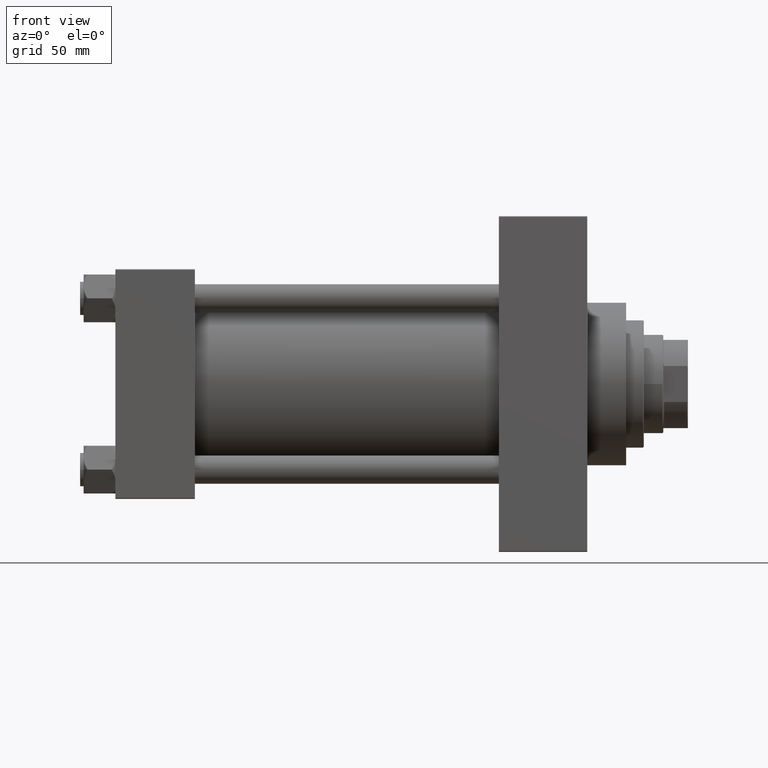
[diagram: clean part render]
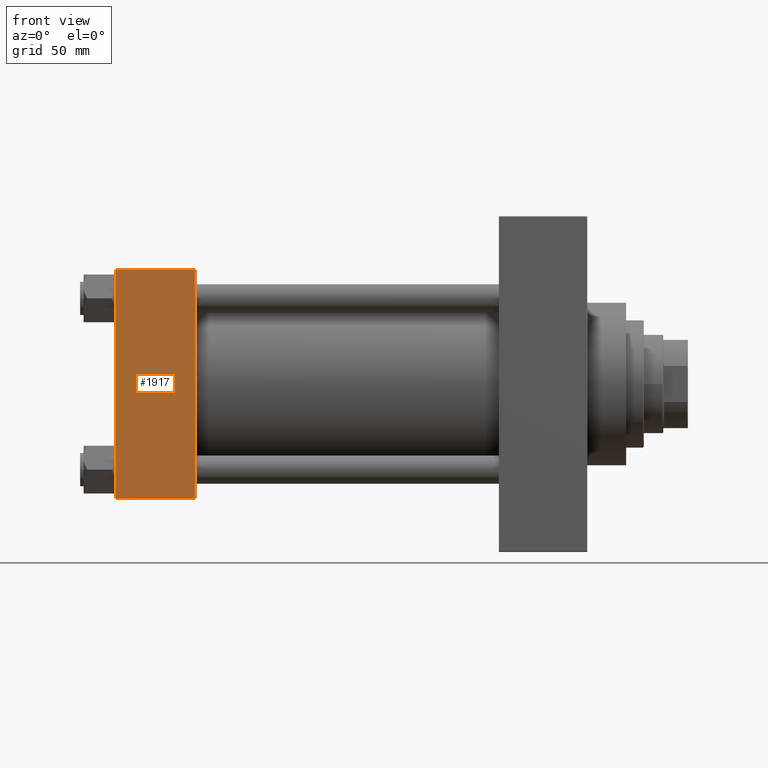
[diagram: same view with one face highlighted and labeled with its STEP entity id]
A machine part, front view. The second image highlights one B-rep face of the part: STEP entity #1917.
In plain terms, the highlighted planar face has unit normal (0, 1, 0).
Its self-contained STEP definition (entity closure, byte-faithful):
#591 = CARTESIAN_POINT ( 'NONE',  ( 0.000000000000000000, -65.00000000000000000, 64.50000000000000000 ) ) ;
#1917 = ADVANCED_FACE ( 'NONE', ( #24980 ), #39738, .F. ) ;
#5278 = DIRECTION ( 'NONE',  ( 0.000000000000000000, 0.000000000000000000, -1.000000000000000000 ) ) ;
#6895 = DIRECTION ( 'NONE',  ( 0.000000000000000000, -0.000000000000000000, 1.000000000000000000 ) ) ;
#9264 = CARTESIAN_POINT ( 'NONE',  ( 45.00000000000000000, -65.00000000000000000, 64.50000000000000000 ) ) ;
#9585 = LINE ( 'NONE', #35445, #14270 ) ;
#12142 = ORIENTED_EDGE ( 'NONE', *, *, #32603, .T. ) ;
#14270 = VECTOR ( 'NONE', #5278, 1000.000000000000000 ) ;
#16224 = DIRECTION ( 'NONE',  ( 1.000000000000000000, 0.000000000000000000, 0.000000000000000000 ) ) ;
#17740 = DIRECTION ( 'NONE',  ( -0.000000000000000000, 1.000000000000000000, 0.000000000000000000 ) ) ;
#18839 = CARTESIAN_POINT ( 'NONE',  ( 45.00000000000000000, -65.00000000000000000, 64.50000000000000000 ) ) ;
#19393 = VECTOR ( 'NONE', #21763, 1000.000000000000000 ) ;
#20867 = EDGE_CURVE ( 'NONE', #36785, #24889, #43504, .T. ) ;
#21363 = CARTESIAN_POINT ( 'NONE',  ( 45.00000000000000000, -65.00000000000000000, 65.00000000000000000 ) ) ;
#21763 = DIRECTION ( 'NONE',  ( -1.000000000000000000, 0.000000000000000000, 0.000000000000000000 ) ) ;
#22109 = LINE ( 'NONE', #25969, #44209 ) ;
#24111 = ORIENTED_EDGE ( 'NONE', *, *, #28397, .F. ) ;
#24889 = VERTEX_POINT ( 'NONE', #591 ) ;
#24980 = FACE_OUTER_BOUND ( 'NONE', #27483, .T. ) ;
#25263 = VERTEX_POINT ( 'NONE', #42515 ) ;
#25969 = CARTESIAN_POINT ( 'NONE',  ( 45.00000000000000000, -65.00000000000000000, 65.00000000000000000 ) ) ;
#26893 = ORIENTED_EDGE ( 'NONE', *, *, #20867, .T. ) ;
#27483 = EDGE_LOOP ( 'NONE', ( #12142, #40409, #24111, #26893 ) ) ;
#28134 = AXIS2_PLACEMENT_3D ( 'NONE', #21363, #17740, #6895 ) ;
#28397 = EDGE_CURVE ( 'NONE', #36785, #46552, #22109, .T. ) ;
#31789 = EDGE_CURVE ( 'NONE', #25263, #46552, #34369, .T. ) ;
#32603 = EDGE_CURVE ( 'NONE', #24889, #25263, #9585, .T. ) ;
#33559 = CARTESIAN_POINT ( 'NONE',  ( 45.00000000000000000, -65.00000000000000000, -64.49999999999991473 ) ) ;
#33906 = CARTESIAN_POINT ( 'NONE',  ( 45.00000000000000000, -65.00000000000000000, -64.49999999999991473 ) ) ;
#34369 = LINE ( 'NONE', #33906, #45086 ) ;
#35445 = CARTESIAN_POINT ( 'NONE',  ( 0.000000000000000000, -65.00000000000000000, 65.00000000000000000 ) ) ;
#36785 = VERTEX_POINT ( 'NONE', #9264 ) ;
#39738 = PLANE ( 'NONE',  #28134 ) ;
#40409 = ORIENTED_EDGE ( 'NONE', *, *, #31789, .T. ) ;
#40723 = DIRECTION ( 'NONE',  ( 0.000000000000000000, 0.000000000000000000, -1.000000000000000000 ) ) ;
#42515 = CARTESIAN_POINT ( 'NONE',  ( 0.000000000000000000, -65.00000000000000000, -64.49999999999991473 ) ) ;
#43504 = LINE ( 'NONE', #18839, #19393 ) ;
#44209 = VECTOR ( 'NONE', #40723, 1000.000000000000000 ) ;
#45086 = VECTOR ( 'NONE', #16224, 1000.000000000000000 ) ;
#46552 = VERTEX_POINT ( 'NONE', #33559 ) ;